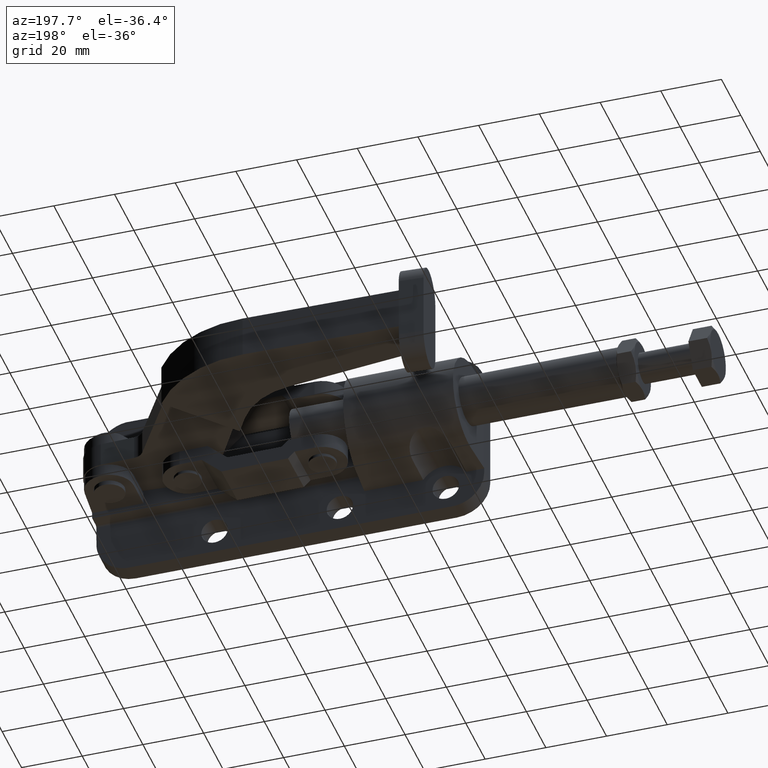
[diagram: clean part render]
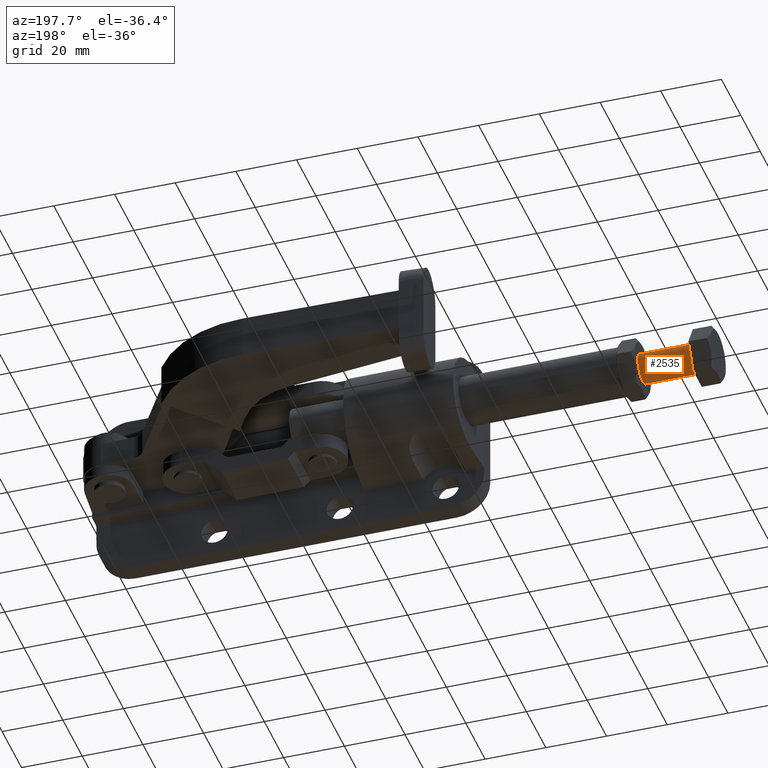
[diagram: same view with one face highlighted and labeled with its STEP entity id]
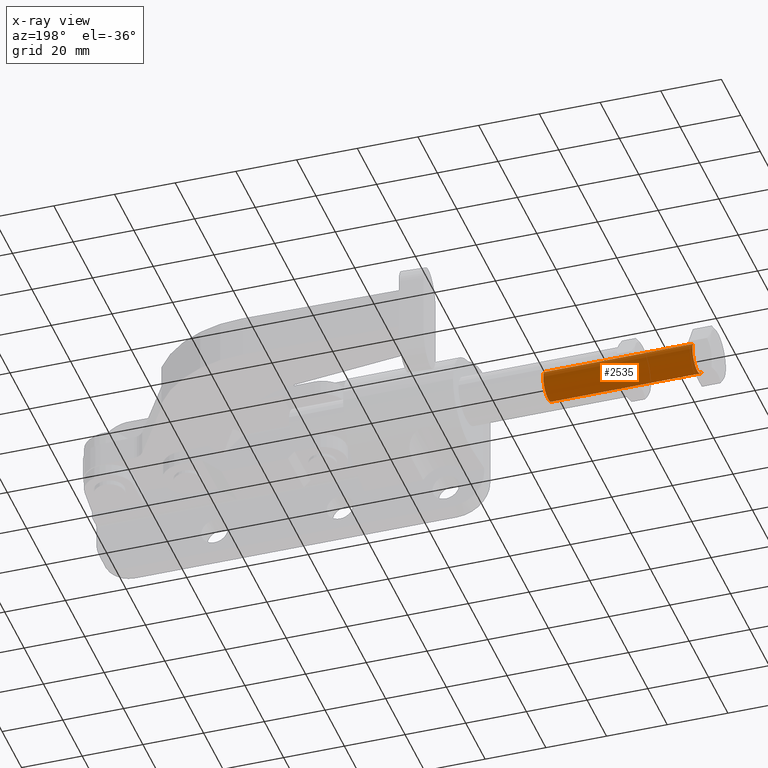
[diagram: x-ray of the same camera — body ghosted, the highlighted face saturated]
A machine part, auxiliary view. The second image highlights one B-rep face of the part: STEP entity #2535.
The next image is the same camera in x-ray: the body ghosted, the highlighted face saturated — about 0% of this face is hidden behind the body in this view.
In plain terms, the highlighted cylindrical surface (edge-blend (fillet) strip) has radius 5 mm, axis along (-1, 0, -0).
Its self-contained STEP definition (entity closure, byte-faithful):
#39 = CARTESIAN_POINT ( 'NONE',  ( -81.64045609942225200, 24.93012701892222100, 2.500000000000012400 ) ) ;
#144 = DIRECTION ( 'NONE',  ( 0.0000000000000000000, 0.8660254037844376000, 0.5000000000000018900 ) ) ;
#755 = VERTEX_POINT ( 'NONE', #893 ) ;
#893 = CARTESIAN_POINT ( 'NONE',  ( -74.79045609942224400, 16.26987298107784200, -2.500000000000010200 ) ) ;
#1198 = ORIENTED_EDGE ( 'NONE', *, *, #6706, .F. ) ;
#1222 = CARTESIAN_POINT ( 'NONE',  ( -25.61845609942223200, 24.93012701892222400, 2.500000000000013300 ) ) ;
#1331 = DIRECTION ( 'NONE',  ( 0.0000000000000000000, -0.8660254037844374900, -0.5000000000000020000 ) ) ;
#1356 = EDGE_LOOP ( 'NONE', ( #1198, #5687, #3197, #6205 ) ) ;
#1634 = EDGE_CURVE ( 'NONE', #1992, #6252, #6116, .T. ) ;
#1666 = VECTOR ( 'NONE', #6316, 1000.000000000000000 ) ;
#1731 = VECTOR ( 'NONE', #2777, 1000.000000000000000 ) ;
#1992 = VERTEX_POINT ( 'NONE', #1222 ) ;
#2350 = FACE_OUTER_BOUND ( 'NONE', #1356, .T. ) ;
#2398 = DIRECTION ( 'NONE',  ( 0.0000000000000000000, -0.8660254037844376000, -0.5000000000000016700 ) ) ;
#2478 = AXIS2_PLACEMENT_3D ( 'NONE', #6400, #3267, #144 ) ;
#2535 = ADVANCED_FACE ( 'NONE', ( #2350 ), #4938, .T. ) ;
#2777 = DIRECTION ( 'NONE',  ( -1.000000000000000000, 2.915428370044454100E-018, -2.872416155677743400E-017 ) ) ;
#2830 = CARTESIAN_POINT ( 'NONE',  ( -74.79045609942224400, 24.93012701892221400, 2.500000000000009300 ) ) ;
#2910 = EDGE_CURVE ( 'NONE', #6431, #755, #4855, .T. ) ;
#2961 = AXIS2_PLACEMENT_3D ( 'NONE', #4442, #6563, #2398 ) ;
#3062 = LINE ( 'NONE', #39, #1666 ) ;
#3197 = ORIENTED_EDGE ( 'NONE', *, *, #5978, .T. ) ;
#3267 = DIRECTION ( 'NONE',  ( -1.000000000000000000, 2.915428370044453700E-018, -2.872416155677743400E-017 ) ) ;
#4442 = CARTESIAN_POINT ( 'NONE',  ( -81.64045609942225200, 20.60000000000002600, -2.385244779468109800E-015 ) ) ;
#4855 = CIRCLE ( 'NONE', #2478, 5.000000000000009800 ) ;
#4938 = CYLINDRICAL_SURFACE ( 'NONE', #2961, 5.000000000000009800 ) ;
#4969 = DIRECTION ( 'NONE',  ( -1.000000000000000000, 2.915428370044453700E-018, -2.872416155677743400E-017 ) ) ;
#5370 = CARTESIAN_POINT ( 'NONE',  ( -81.64045609942225200, 16.26987298107783200, -2.500000000000016000 ) ) ;
#5516 = CARTESIAN_POINT ( 'NONE',  ( -25.61845609942223200, 20.60000000000002600, -8.673617379884035500E-016 ) ) ;
#5687 = ORIENTED_EDGE ( 'NONE', *, *, #1634, .T. ) ;
#5913 = LINE ( 'NONE', #5370, #1731 ) ;
#5978 = EDGE_CURVE ( 'NONE', #6252, #755, #5913, .T. ) ;
#6058 = AXIS2_PLACEMENT_3D ( 'NONE', #5516, #4969, #1331 ) ;
#6116 = CIRCLE ( 'NONE', #6058, 5.000000000000007100 ) ;
#6162 = CARTESIAN_POINT ( 'NONE',  ( -25.61845609942223200, 16.26987298107783200, -2.500000000000014200 ) ) ;
#6205 = ORIENTED_EDGE ( 'NONE', *, *, #2910, .F. ) ;
#6252 = VERTEX_POINT ( 'NONE', #6162 ) ;
#6316 = DIRECTION ( 'NONE',  ( -1.000000000000000000, 2.915428370044454100E-018, -2.872416155677743400E-017 ) ) ;
#6400 = CARTESIAN_POINT ( 'NONE',  ( -74.79045609942224400, 20.60000000000002600, -2.385244779468109800E-015 ) ) ;
#6431 = VERTEX_POINT ( 'NONE', #2830 ) ;
#6563 = DIRECTION ( 'NONE',  ( -1.000000000000000000, 2.915428370044453700E-018, -2.872416155677743400E-017 ) ) ;
#6706 = EDGE_CURVE ( 'NONE', #1992, #6431, #3062, .T. ) ;